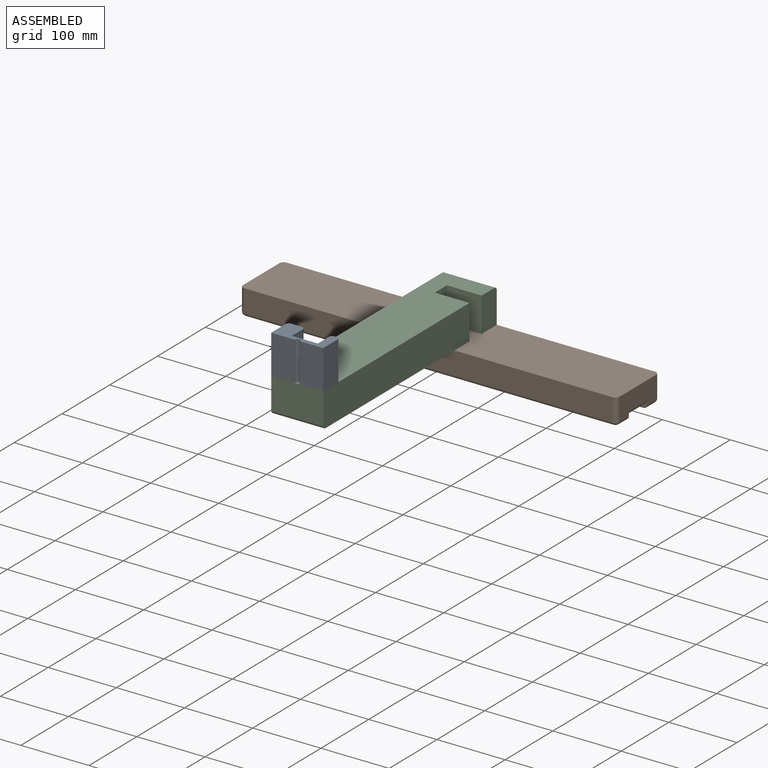
[diagram: assembled view]
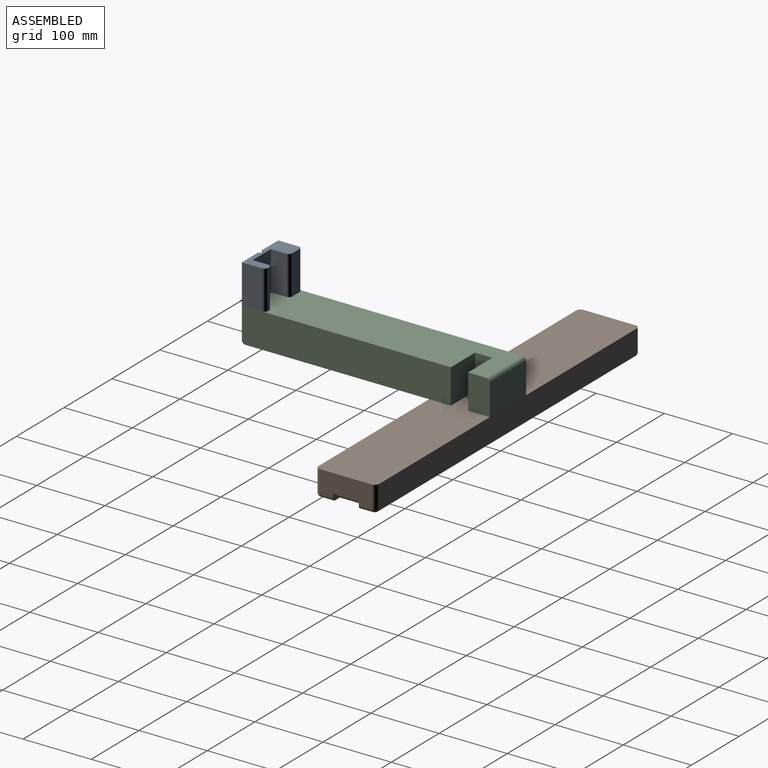
[diagram: assembled view, second angle]
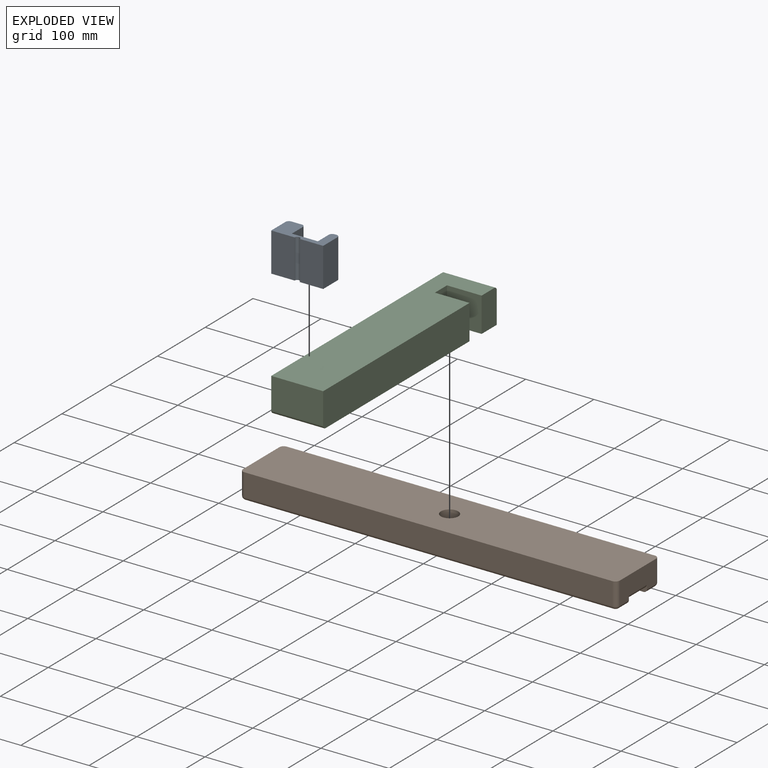
[diagram: exploded view]
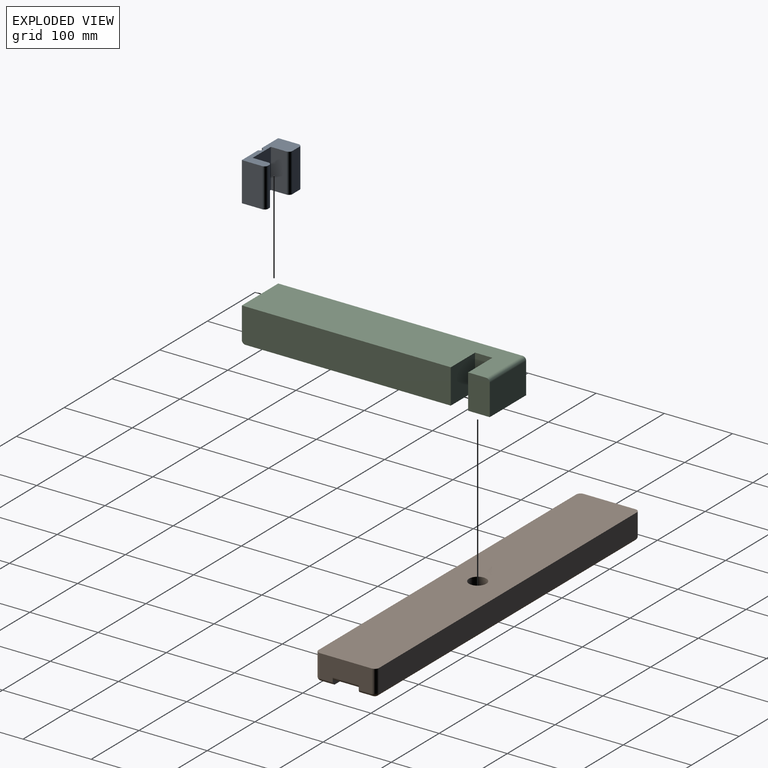
[diagram: exploded view, second angle]
ASSEMBLY  parts=3 mates=2
PART A: 16 faces, bbox 76.2x34.9x57.2 mm
  f0: plane 57.15x29.85mm, normal (-1,0,0), area 1705.6mm2, adj f1,f10,f11,f13
  f1: plane 57.15x34.29mm, normal (0,-1,0), area 1959.7mm2, adj f0,f2,f10,f11
  f2: cylinder r=3.81mm len=57.15mm, axis (0,0,-1), area 684.1mm2, adj f1,f3,f10,f11
  f3: plane 57.15x34.29mm, normal (0,-1,0), area 1959.7mm2, adj f2,f4,f10,f11
  f4: plane 57.15x29.85mm, normal (1,0,0), area 1705.6mm2, adj f3,f10,f11,f14
  f5: plane 57.15x15.24mm, normal (0,1,0), area 871mm2, adj f10,f11,f14,f15
  f6: plane 57.15x22.86mm, normal (-1,0,0), area 1306.4mm2, adj f7,f10,f11,f15
  f7: plane 57.15x38.1mm, normal (0,1,0), area 2177.4mm2, adj f6,f8,f10,f11
  f8: plane 57.15x22.86mm, normal (1,0,0), area 1306.4mm2, adj f7,f10,f11,f12
  f9: plane 57.15x2.54mm, normal (0,1,0), area 145.2mm2, adj f10,f11,f12,f13
  f10: plane 76.2x34.93mm, normal (0,0,1), area 1551.8mm2, adj f0,f1,f2,f3,f4,f5,f6,f7
  f11: plane 76.2x34.93mm, normal (0,0,-1), area 1551.8mm2, adj f0,f1,f2,f3,f4,f5,f6,f7
  f12: cylinder r=5.08mm len=57.15mm, axis (0,0,1), area 456mm2, adj f8,f9,f10,f11
  f13: cylinder r=5.08mm len=57.15mm, axis (0,0,-1), area 456mm2, adj f0,f9,f10,f11
  f14: cylinder r=5.08mm len=57.15mm, axis (0,0,1), area 456mm2, adj f4,f5,f10,f11
  f15: cylinder r=5.08mm len=57.15mm, axis (0,0,-1), area 456mm2, adj f5,f6,f10,f11
PART B: 28 faces, bbox 552.5x88.9x38.1 mm
  f0: plane 552.45x11.43mm, normal (0,-1,0), area 3508.1mm2, adj f1,f5,f6,f14,f16,f17,f18,f22
  f1: plane 76.2x33.02mm, normal (1,0,0), area 2274.2mm2, adj f0,f2,f7,f8,f11,f17,f22,f27
  f2: cylinder r=6.35mm len=33.02mm, axis (0,0,-1), area 329.4mm2, adj f1,f3,f7,f21
  f3: plane 539.75x33.02mm, normal (0,1,0), area 17822.5mm2, adj f2,f4,f7,f20
  f4: cylinder r=6.35mm len=33.02mm, axis (0,0,-1), area 329.4mm2, adj f3,f5,f7,f19
  f5: plane 76.2x33.02mm, normal (-1,0,0), area 2274.2mm2, adj f0,f4,f7,f8,f9,f16,f18,f23
  f6: plane 542.29x20.32mm, normal (0,0,1), area 11018.6mm2, adj f0,f18,f19,f20,f21,f22
  f7: plane 552.45x88.9mm, normal (0,0,-1), area 48571.5mm2, adj f1,f2,f3,f4,f5,f9,f10,f11
  f8: plane 552.45x11.43mm, normal (0,1,0), area 3508.1mm2, adj f1,f5,f12,f14,f16,f17,f23,f27
  f9: cylinder r=6.35mm len=33.02mm, axis (0,0,-1), area 329.4mm2, adj f5,f7,f10,f24
  f10: plane 539.75x33.02mm, normal (0,-1,0), area 17822.5mm2, adj f7,f9,f11,f25
  f11: cylinder r=6.35mm len=33.02mm, axis (0,0,-1), area 329.4mm2, adj f1,f7,f10,f26
  f12: plane 542.29x20.32mm, normal (0,0,1), area 11018.6mm2, adj f8,f23,f24,f25,f26,f27
  f13: cylinder r=12.7mm len=29.21mm, axis (0,0,-1), area 2330.9mm2, adj f7,f15
  f14: plane 542.29x38.1mm, normal (0,0,1), area 19931.6mm2, adj f0,f8,f15,f16,f17
  f15: torus R=15.24mm, axis (0,0,1), area 341.5mm2, adj f13,f14
  f16: cylinder r=5.08mm len=38.1mm, axis (0,1,0), area 304mm2, adj f0,f5,f8,f14
  f17: cylinder r=5.08mm len=38.1mm, axis (0,-1,0), area 304mm2, adj f0,f1,f8,f14
  f18: cylinder r=5.08mm len=19.05mm, axis (0,1,0), area 152mm2, adj f0,f5,f6,f19
  f19: torus R=1.27mm, axis (0,0,1), area 56.5mm2, adj f4,f6,f18,f20
  f20: cylinder r=5.08mm len=539.75mm, axis (1,0,0), area 4307mm2, adj f3,f6,f19,f21
  f21: torus R=1.27mm, axis (0,0,1), area 56.5mm2, adj f2,f6,f20,f22
  f22: cylinder r=5.08mm len=19.05mm, axis (0,-1,0), area 152mm2, adj f0,f1,f6,f21
  f23: cylinder r=5.08mm len=19.05mm, axis (0,1,0), area 152mm2, adj f5,f8,f12,f24
  f24: torus R=1.27mm, axis (0,0,1), area 56.5mm2, adj f9,f12,f23,f25
  f25: cylinder r=5.08mm len=539.75mm, axis (-1,0,0), area 4307mm2, adj f10,f12,f24,f26
  f26: torus R=1.27mm, axis (0,0,1), area 56.5mm2, adj f11,f12,f25,f27
  f27: cylinder r=5.08mm len=19.05mm, axis (0,-1,0), area 152mm2, adj f1,f8,f12,f26
PART C: 12 faces, bbox 76.2x363.5x50.8 mm
  f0: plane 50.8x50.8mm, normal (0,-1,0), area 2580.6mm2, adj f1,f7,f8,f9
  f1: plane 50.8x31.75mm, normal (1,0,0), area 1607.4mm2, adj f0,f2,f8,f9,f10
  f2: plane 76.2x45.72mm, normal (0,1,0), area 3483.9mm2, adj f1,f3,f9,f10
  f3: plane 363.54x50.8mm, normal (-1,0,0), area 18456.6mm2, adj f2,f4,f8,f9,f10,f11
  f4: plane 76.2x45.72mm, normal (0,-1,0), area 3483.9mm2, adj f3,f5,f8,f11
  f5: plane 306.39x50.8mm, normal (1,0,0), area 15558.9mm2, adj f4,f6,f8,f9,f11
  f6: plane 50.8x50.8mm, normal (0,1,0), area 2580.6mm2, adj f5,f7,f8,f9
  f7: plane 50.8x25.4mm, normal (1,0,0), area 1290.3mm2, adj f0,f6,f8,f9
  f8: plane 358.46x76.2mm, normal (0,0,1), area 26024.1mm2, adj f0,f1,f3,f4,f5,f6,f7,f10
  f9: plane 358.46x76.2mm, normal (0,0,-1), area 26024.1mm2, adj f0,f1,f2,f3,f5,f6,f7,f11
  f10: cylinder r=5.08mm len=76.2mm, axis (1,0,0), area 608mm2, adj f1,f2,f3,f8
  f11: cylinder r=5.08mm len=76.2mm, axis (1,0,0), area 608mm2, adj f3,f4,f5,f9
PLACE A rot(axis=(0,1,0),180deg) t=(3.97,-152.33,76.64)mm
PLACE B rot(axis=(1,0,0),180deg) t=(3.97,149.3,-31.31)mm
PLACE C t=(3.97,11.98,-31.31)mm
MATE fastened B.f13 <-> C.f9  axis (0,0,1) through (3.97,149.3,-31.31)mm
MATE fastened A.f10 <-> C.f8  axis (0,0,-1) through (10.32,-162.8,19.49)mm
